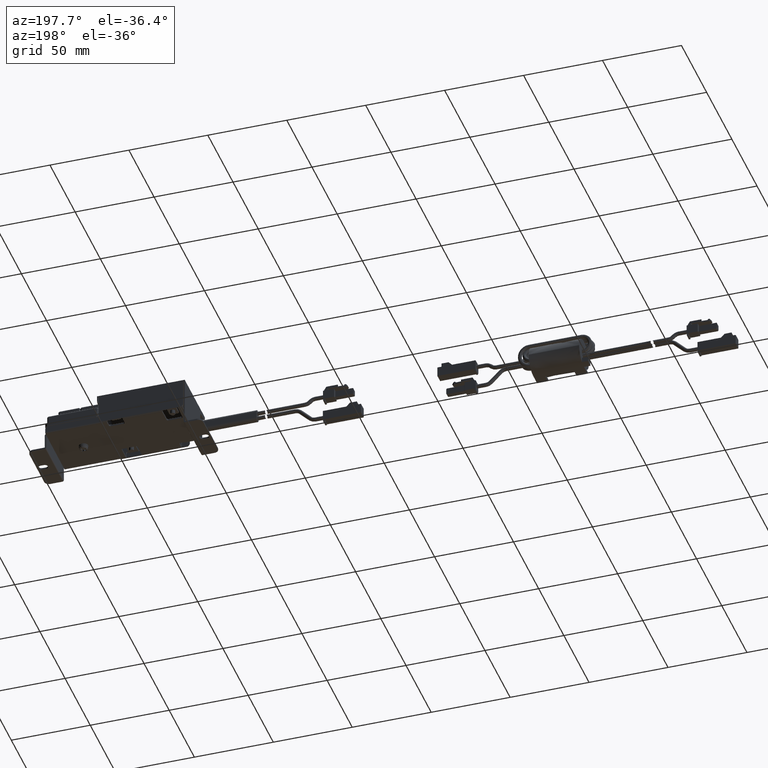
[diagram: clean part render]
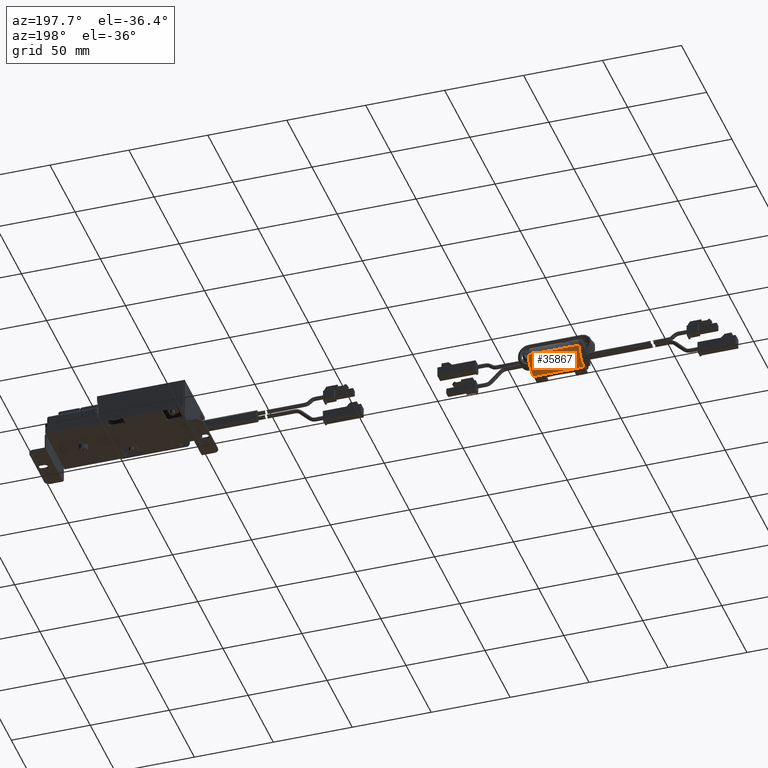
[diagram: same view with one face highlighted and labeled with its STEP entity id]
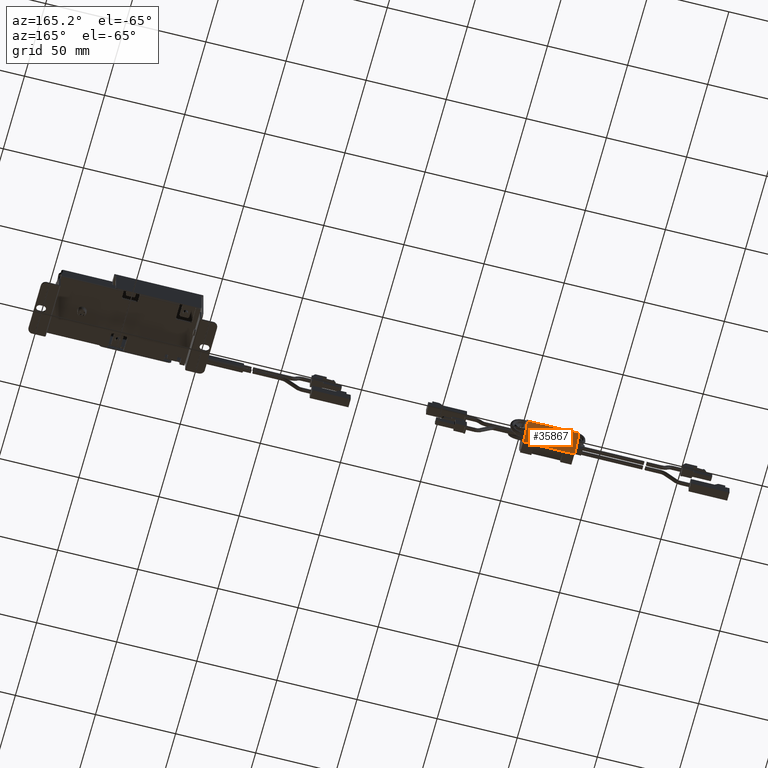
[diagram: same view with one face highlighted and labeled with its STEP entity id]
A machine part, auxiliary view. The second image highlights one B-rep face of the part: STEP entity #35867.
A second angle (auxiliary view) of the same face is appended — the face is thin or edge-on in the first view.
In plain terms, the highlighted face is a freeform B-spline surface patch.
Its self-contained STEP definition (entity closure, byte-faithful):
#34250=CARTESIAN_POINT('',(-330.259232973631070,-16.491588024701620,11.185135000591179));
#34251=VERTEX_POINT('',#34250);
#34252=CARTESIAN_POINT('',(-312.259232973631070,-16.491588024701620,11.185135000591179));
#34253=VERTEX_POINT('',#34252);
#34254=CARTESIAN_POINT('',(-330.259232973631070,-16.491588024701620,11.185135000591179));
#34255=CARTESIAN_POINT('',(-312.259232973631070,-16.491588024701620,11.185135000591179));
#34256=QUASI_UNIFORM_CURVE('',1,(#34254,#34255),.UNSPECIFIED.,.F.,.U.);
#34257=EDGE_CURVE('',#34251,#34253,#34256,.T.);
#34898=CARTESIAN_POINT('',(-312.259232973631070,-16.501588024701640,11.185135000591121));
#34899=VERTEX_POINT('',#34898);
#34900=CARTESIAN_POINT('',(-312.259232973631070,-16.491588024701620,11.185135000591179));
#34901=CARTESIAN_POINT('',(-312.259232973631070,-16.501588024701640,11.185135000591121));
#34902=QUASI_UNIFORM_CURVE('',1,(#34900,#34901),.UNSPECIFIED.,.F.,.U.);
#34903=EDGE_CURVE('',#34253,#34899,#34902,.T.);
#34941=CARTESIAN_POINT('',(-337.259232973631070,-16.501588024701661,11.185135000591121));
#34942=VERTEX_POINT('',#34941);
#34971=CARTESIAN_POINT('',(-330.259232973631070,-16.501588024701661,11.185135000591121));
#34972=VERTEX_POINT('',#34971);
#34980=CARTESIAN_POINT('',(-330.259232973631070,-16.501588024701661,11.185135000591121));
#34981=CARTESIAN_POINT('',(-337.259232973631070,-16.501588024701661,11.185135000591121));
#34982=QUASI_UNIFORM_CURVE('',1,(#34980,#34981),.UNSPECIFIED.,.F.,.U.);
#34983=EDGE_CURVE('',#34972,#34942,#34982,.T.);
#34994=CARTESIAN_POINT('',(-330.259232973631070,-16.501588024701661,11.185135000591121));
#34995=CARTESIAN_POINT('',(-330.259232973631070,-16.491588024701620,11.185135000591179));
#34996=QUASI_UNIFORM_CURVE('',1,(#34994,#34995),.UNSPECIFIED.,.F.,.U.);
#34997=EDGE_CURVE('',#34972,#34251,#34996,.T.);
#35540=CARTESIAN_POINT('',(-305.259232973631070,-16.501588024701640,11.185135000591121));
#35541=VERTEX_POINT('',#35540);
#35549=CARTESIAN_POINT('',(-305.259232973631070,-16.501588024701640,11.185135000591121));
#35550=CARTESIAN_POINT('',(-312.259232973631070,-16.501588024701640,11.185135000591121));
#35551=QUASI_UNIFORM_CURVE('',1,(#35549,#35550),.UNSPECIFIED.,.F.,.U.);
#35552=EDGE_CURVE('',#35541,#34899,#35551,.T.);
#35618=CARTESIAN_POINT('',(-337.259232973631070,-12.501588024701610,12.021417933109189));
#35619=VERTEX_POINT('',#35618);
#35620=CARTESIAN_POINT('',(-337.259232973631070,-16.501588024701661,11.185135000591121));
#35621=CARTESIAN_POINT('',(-337.259232973631190,-16.216209307830109,11.185135133423330));
#35622=CARTESIAN_POINT('',(-337.259232973631190,-15.929931064145050,11.197318042406041));
#35623=CARTESIAN_POINT('',(-337.259232973631190,-15.499122156172451,11.234438814744809));
#35624=CARTESIAN_POINT('',(-337.259232973631070,-15.355751676833091,11.249930532981139));
#35625=CARTESIAN_POINT('',(-337.259232973631010,-15.071135831294431,11.286893217947449));
#35626=CARTESIAN_POINT('',(-337.259232973631010,-14.929635143615640,11.308385124908069));
#35627=CARTESIAN_POINT('',(-337.259232973631070,-14.226114149668041,11.430697093560861));
#35628=CARTESIAN_POINT('',(-337.259232973631070,-13.675949616090840,11.575732983499631));
#35629=CARTESIAN_POINT('',(-337.259232973631070,-12.924139556388040,11.844929063216270));
#35630=CARTESIAN_POINT('',(-337.259232973631070,-12.711815963741319,11.929265652492870));
#35631=CARTESIAN_POINT('',(-337.259232973631070,-12.501588024701610,12.021417933109189));
#35632=B_SPLINE_CURVE_WITH_KNOTS('',3,(#35620,#35621,#35622,#35623,#35624,#35625,#35626,#35627,#35628,#35629,#35630,#35631),.UNSPECIFIED.,.F.,.U.,(4,2,2,2,2,4),(0.0,0.015625000000000,0.023437500000000,0.031250000000000,0.062499999999999,0.074963695386748),.UNSPECIFIED.);
#35633=EDGE_CURVE('',#34942,#35619,#35632,.T.);
#35706=CARTESIAN_POINT('',(-305.259232973630900,-6.751585734245976,20.685135000609041));
#35707=VERTEX_POINT('',#35706);
#35708=CARTESIAN_POINT('',(-305.259232973631070,-16.501588024701640,11.185135000591121));
#35709=CARTESIAN_POINT('',(-305.259232973631070,-16.216209283994779,11.185135000590730));
#35710=CARTESIAN_POINT('',(-305.259232973631070,-15.929931017310111,11.197317775136590));
#35711=CARTESIAN_POINT('',(-305.259232973631070,-15.499122076130860,11.234438343338329));
#35712=CARTESIAN_POINT('',(-305.259232973631070,-15.355751585975140,11.249929993333760));
#35713=CARTESIAN_POINT('',(-305.259232973631070,-15.071135719428311,11.286892542225550));
#35714=CARTESIAN_POINT('',(-305.259232973631070,-14.929635021537941,11.308384381231670));
#35715=CARTESIAN_POINT('',(-305.259232973631070,-14.226113977975420,11.430696010520281));
#35716=CARTESIAN_POINT('',(-305.259232973631010,-13.675949409290810,11.575731630264910));
#35717=CARTESIAN_POINT('',(-305.259232973631070,-12.869769601411880,11.864395137061919));
#35718=CARTESIAN_POINT('',(-305.259232973631010,-12.604238554353000,11.972534052098650));
#35719=CARTESIAN_POINT('',(-305.259232973631070,-12.079813305187120,12.213563832623420));
#35720=CARTESIAN_POINT('',(-305.259232973631010,-11.824691480300730,12.344731989401620));
#35721=CARTESIAN_POINT('',(-305.259232973631070,-11.080838721514301,12.768918252094929));
#35722=CARTESIAN_POINT('',(-305.259232973631070,-10.613081581649260,13.092554621976380));
#35723=CARTESIAN_POINT('',(-305.259232973630900,-10.064067728747521,13.548885092832030));
#35724=CARTESIAN_POINT('',(-305.259232973631010,-9.956062167164330,13.642759420607691));
#35725=CARTESIAN_POINT('',(-305.259232973631070,-9.743712434886486,13.835821739049379));
#35726=CARTESIAN_POINT('',(-305.259232973631010,-9.639188553459103,13.935189724878470));
#35727=CARTESIAN_POINT('',(-305.259232973631070,-9.332471702294440,14.240236311765861));
#35728=CARTESIAN_POINT('',(-305.259232973631010,-9.138656490159722,14.451244933549040));
#35729=CARTESIAN_POINT('',(-305.259232973631070,-8.588381627958075,15.106617562613639));
#35730=CARTESIAN_POINT('',(-305.259232973631010,-8.262847056063400,15.573152190691840));
#35731=CARTESIAN_POINT('',(-305.259232973631010,-7.908633171897448,16.194104947144648));
#35732=CARTESIAN_POINT('',(-305.259232973631010,-7.840445341546699,16.320198866677998));
#35733=CARTESIAN_POINT('',(-305.259232973631070,-7.709488745463698,16.576271708914579));
#35734=CARTESIAN_POINT('',(-305.259232973631010,-7.646593281585304,16.706556674084279));
#35735=CARTESIAN_POINT('',(-305.259232973631010,-7.467940778731641,17.099525313655409));
#35736=CARTESIAN_POINT('',(-305.259232973631010,-7.361702481879480,17.365149508239810));
#35737=CARTESIAN_POINT('',(-305.259232973631010,-7.080658415912682,18.172696896673600));
#35738=CARTESIAN_POINT('',(-305.259232973630900,-6.943219619758594,18.725208792580901));
#35739=CARTESIAN_POINT('',(-305.259232973631010,-6.835398382408216,19.433977937279209));
#35740=CARTESIAN_POINT('',(-305.259232973631010,-6.817057383808159,19.576645140229100));
#35741=CARTESIAN_POINT('',(-305.259232973631010,-6.786963894507291,19.863846535655320));
#35742=CARTESIAN_POINT('',(-305.259232973630900,-6.775325873343954,20.007308213932280));
#35743=CARTESIAN_POINT('',(-305.259232973631010,-6.756712837018544,20.329058024723100));
#35744=CARTESIAN_POINT('',(-305.259232973630900,-6.751583697475928,20.507266630409550));
#35745=CARTESIAN_POINT('',(-305.259232973630900,-6.751585734245976,20.685135000609041));
#35746=B_SPLINE_CURVE_WITH_KNOTS('',3,(#35708,#35709,#35710,#35711,#35712,#35713,#35714,#35715,#35716,#35717,#35718,#35719,#35720,#35721,#35722,#35723,#35724,#35725,#35726,#35727,#35728,#35729,#35730,#35731,#35732,#35733,#35734,#35735,#35736,#35737,#35738,#35739,#35740,#35741,#35742,#35743,#35744,#35745),.UNSPECIFIED.,.F.,.U.,(4,2,2,2,2,2,2,2,2,2,2,2,2,2,2,2,2,2,4),(0.0,0.015625000000000,0.023437500000000,0.031250000000000,0.062500000000000,0.078125000000000,0.093750000000001,0.125000000000001,0.132812500000001,0.140625000000001,0.156250000000001,0.187500000000001,0.195312500000001,0.203125000000001,0.218750000000002,0.250000000000002,0.257812500000002,0.265625000000002,0.275366505344576),.UNSPECIFIED.);
#35747=EDGE_CURVE('',#35541,#35707,#35746,.T.);
#35798=CARTESIAN_POINT('',(-338.857632894984480,-17.199656692094120,11.209515258801019));
#35799=CARTESIAN_POINT('',(-338.857632894984530,-16.851070804735617,11.185135000591087));
#35800=CARTESIAN_POINT('',(-338.857632894984480,-16.501588024701618,11.185135000591091));
#35801=CARTESIAN_POINT('',(-338.857632894984590,-6.751588024701619,11.185135000591085));
#35802=CARTESIAN_POINT('',(-338.857632894984590,-6.751588024701619,20.752113967959403));
#35803=CARTESIAN_POINT('',(-338.857632894984530,-6.751588024701619,20.818702866590513));
#35804=CARTESIAN_POINT('',(-303.660833576798670,-17.199656692094120,11.209515258801019));
#35805=CARTESIAN_POINT('',(-303.660833576798670,-16.851070804735617,11.185135000591087));
#35806=CARTESIAN_POINT('',(-303.660833576798720,-16.501588024701618,11.185135000591091));
#35807=CARTESIAN_POINT('',(-303.660833576798720,-6.751588024701619,11.185135000591085));
#35808=CARTESIAN_POINT('',(-303.660833576798780,-6.751588024701619,20.752113967959403));
#35809=CARTESIAN_POINT('',(-303.660833576798720,-6.751588024701619,20.818702866590513));
#35817=(BOUNDED_SURFACE()B_SPLINE_SURFACE(2,1,((#35798,#35804),(#35799,#35805),(#35800,#35806),(#35801,#35807),(#35802,#35808),(#35803,#35809)),.UNSPECIFIED.,.F.,.F.,.U.)B_SPLINE_SURFACE_WITH_KNOTS((3,2,1,3),(2,2),(0.0,0.796630918847355,16.745197862738369,16.904683532198820),(0.0,35.196799318185811),.UNSPECIFIED.)GEOMETRIC_REPRESENTATION_ITEM()RATIONAL_B_SPLINE_SURFACE(((0.972201506066881,0.972201506066881),(0.985369983720268,0.985369983720268),(1.0,1.0),(0.707106781186547,0.707106781186547),(1.002928932188530,1.002928932188530),(1.005857864377060,1.005857864377060)))REPRESENTATION_ITEM('')SURFACE());
#35818=ORIENTED_EDGE('',*,*,#35747,.F.);
#35819=ORIENTED_EDGE('',*,*,#35552,.T.);
#35820=ORIENTED_EDGE('',*,*,#34903,.F.);
#35821=ORIENTED_EDGE('',*,*,#34257,.F.);
#35822=ORIENTED_EDGE('',*,*,#34997,.F.);
#35823=ORIENTED_EDGE('',*,*,#34983,.T.);
#35824=ORIENTED_EDGE('',*,*,#35633,.T.);
#35825=CARTESIAN_POINT('',(-337.259232973631010,-6.751585734245976,20.685135000609041));
#35826=VERTEX_POINT('',#35825);
#35827=CARTESIAN_POINT('',(-337.259232973631070,-12.501588024701610,12.021417933109189));
#35828=CARTESIAN_POINT('',(-337.259232973631070,-12.448265587294950,12.044791496812451));
#35829=CARTESIAN_POINT('',(-337.259232973631070,-12.395077971250180,12.068667873395359));
#35830=CARTESIAN_POINT('',(-337.259232973631070,-12.079813557781071,12.213565702343450));
#35831=CARTESIAN_POINT('',(-337.259232973631070,-11.824691721388040,12.344733812333070));
#35832=CARTESIAN_POINT('',(-337.259232973631070,-11.080838928962599,12.768919932106369));
#35833=CARTESIAN_POINT('',(-337.259232973631070,-10.613081767822450,13.092556203256350));
#35834=CARTESIAN_POINT('',(-337.259232973631070,-10.064067889785999,13.548886546321789));
#35835=CARTESIAN_POINT('',(-337.259232973631190,-9.956062323249363,13.642760848318980));
#35836=CARTESIAN_POINT('',(-337.259232973631190,-9.743712581214343,13.835823114754771));
#35837=CARTESIAN_POINT('',(-337.259232973631070,-9.639188694974941,13.935191074309810));
#35838=CARTESIAN_POINT('',(-337.259232973631190,-9.332471829660975,14.240237582002401));
#35839=CARTESIAN_POINT('',(-337.259232973631190,-9.138656608546185,14.451246150900671));
#35840=CARTESIAN_POINT('',(-337.259232973631070,-8.588381720728012,15.106618621052210));
#35841=CARTESIAN_POINT('',(-337.259232973631010,-8.262847133510135,15.573153142845930));
#35842=CARTESIAN_POINT('',(-337.259232973631070,-7.908633232428314,16.194105766006320));
#35843=CARTESIAN_POINT('',(-337.259232973631190,-7.840445398807130,16.320199658859181));
#35844=CARTESIAN_POINT('',(-337.259232973631190,-7.709488796413393,16.576272447689860));
#35845=CARTESIAN_POINT('',(-337.259232973631190,-7.646593329488461,16.706557386073410));
#35846=CARTESIAN_POINT('',(-337.259232973631190,-7.467940817932167,17.099525945993872));
#35847=CARTESIAN_POINT('',(-337.259232973631190,-7.361702515836448,17.365150088239591));
#35848=CARTESIAN_POINT('',(-337.259232973631070,-7.080658435773677,18.172697321888052));
#35849=CARTESIAN_POINT('',(-337.259232973631070,-6.943219632388681,18.725209117561551));
#35850=CARTESIAN_POINT('',(-337.259232973631070,-6.835398388775924,19.433978140756210));
#35851=CARTESIAN_POINT('',(-337.259232973631070,-6.817057389063260,19.576645319596238));
#35852=CARTESIAN_POINT('',(-337.259232973631070,-6.786963897823087,19.863846667192899));
#35853=CARTESIAN_POINT('',(-337.259232973631070,-6.775325875840384,20.007308321928999));
#35854=CARTESIAN_POINT('',(-337.259232973631010,-6.756712838006822,20.329058080697170));
#35855=CARTESIAN_POINT('',(-337.259232973631010,-6.751583697856814,20.507266658104960));
#35856=CARTESIAN_POINT('',(-337.259232973631010,-6.751585734245976,20.685135000609041));
#35857=B_SPLINE_CURVE_WITH_KNOTS('',3,(#35827,#35828,#35829,#35830,#35831,#35832,#35833,#35834,#35835,#35836,#35837,#35838,#35839,#35840,#35841,#35842,#35843,#35844,#35845,#35846,#35847,#35848,#35849,#35850,#35851,#35852,#35853,#35854,#35855,#35856),.UNSPECIFIED.,.F.,.U.,(4,2,2,2,2,2,2,2,2,2,2,2,2,2,4),(0.074963695386748,0.078124999999999,0.093749999999999,0.124999999999999,0.132812499999999,0.140624999999998,0.156249999999998,0.187499999999998,0.195312499999998,0.203124999999998,0.218749999999998,0.249999999999998,0.257812499999998,0.265624999999998,0.275366505344570),.UNSPECIFIED.);
#35858=EDGE_CURVE('',#35619,#35826,#35857,.T.);
#35859=ORIENTED_EDGE('',*,*,#35858,.T.);
#35860=CARTESIAN_POINT('',(-337.259232973631010,-6.751585734245976,20.685135000609041));
#35861=CARTESIAN_POINT('',(-305.259232973630900,-6.751585734245976,20.685135000609041));
#35862=QUASI_UNIFORM_CURVE('',1,(#35860,#35861),.UNSPECIFIED.,.F.,.U.);
#35863=EDGE_CURVE('',#35826,#35707,#35862,.T.);
#35864=ORIENTED_EDGE('',*,*,#35863,.T.);
#35865=EDGE_LOOP('',(#35818,#35819,#35820,#35821,#35822,#35823,#35824,#35859,#35864));
#35866=FACE_OUTER_BOUND('',#35865,.T.);
#35867=ADVANCED_FACE('',(#35866),#35817,.T.);